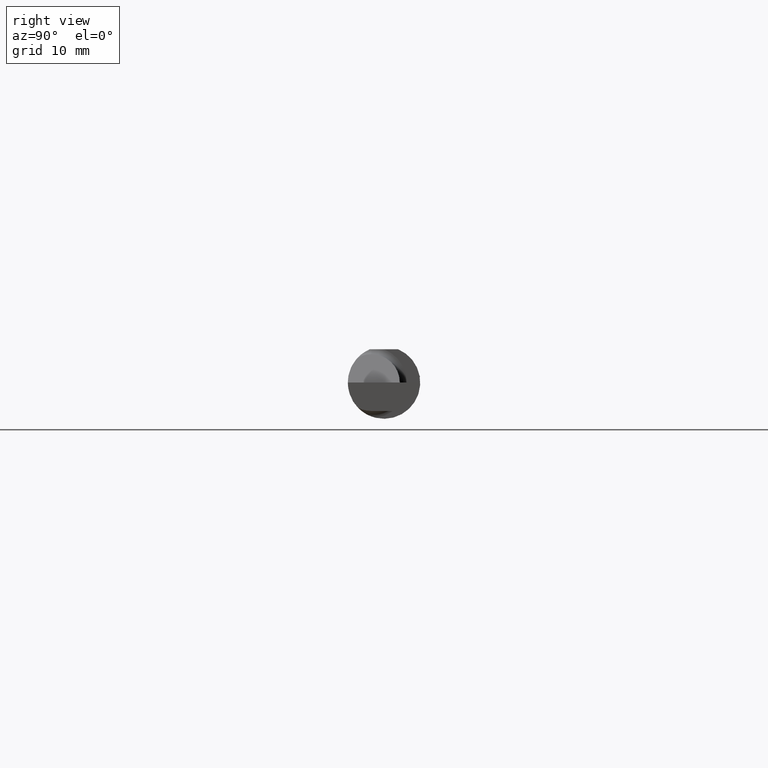
[diagram: clean part render]
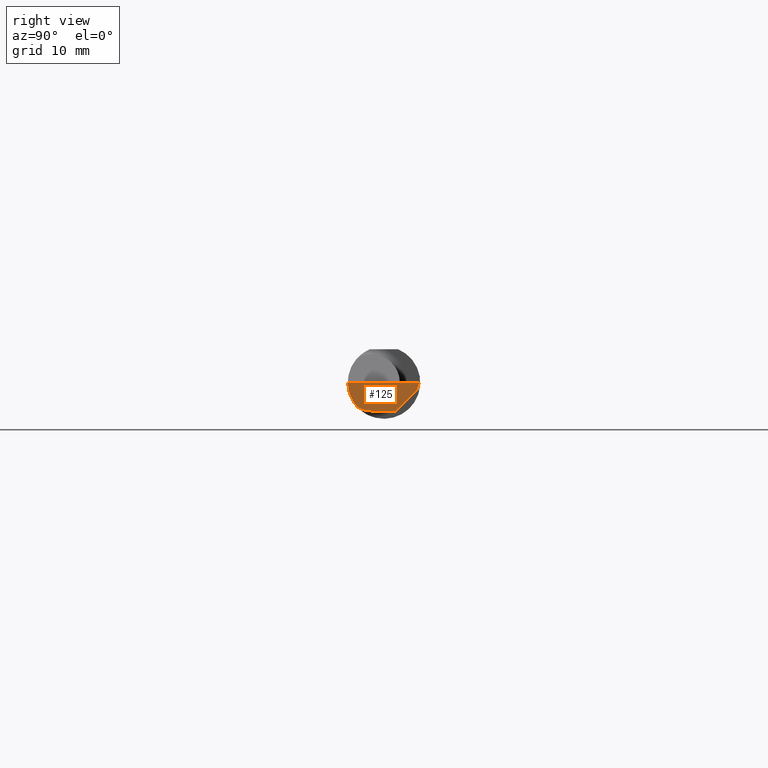
[diagram: same view with one face highlighted and labeled with its STEP entity id]
A machine part, right view. The second image highlights one B-rep face of the part: STEP entity #125.
In plain terms, the highlighted planar face has unit normal (-0.9995, 0.0174, 0.0262).
Its self-contained STEP definition (entity closure, byte-faithful):
#2 = EDGE_CURVE ( 'NONE', #163, #261, #554, .T. ) ;
#18 = VECTOR ( 'NONE', #441, 39.37007874015748854 ) ;
#52 = DIRECTION ( 'NONE',  ( -0.03042981077198583101, -0.3254173858243484818, -0.9450807116958995779 ) ) ;
#104 = VERTEX_POINT ( 'NONE', #473 ) ;
#106 = CARTESIAN_POINT ( 'NONE',  ( 2.494033449660867152, -0.09015216647662482874, -0.08637192471845768493 ) ) ;
#118 = LINE ( 'NONE', #552, #154 ) ;
#125 = ADVANCED_FACE ( 'NONE', ( #340 ), #695, .F. ) ;
#154 = VECTOR ( 'NONE', #302, 39.37007874015748854 ) ;
#163 = VERTEX_POINT ( 'NONE', #783 ) ;
#189 = CARTESIAN_POINT ( 'NONE',  ( 2.494253479596434175, -0.06008937020638530080, -0.09800000000000001765 ) ) ;
#194 = CARTESIAN_POINT ( 'NONE',  ( 2.494536841675280670, -0.04385000000000003478, -0.09799999999999998990 ) ) ;
#229 = LINE ( 'NONE', #588, #782 ) ;
#243 = CARTESIAN_POINT ( 'NONE',  ( 2.496652745773396020, 0.07741163850316090667, -0.09800000000000001765 ) ) ;
#250 = CARTESIAN_POINT ( 'NONE',  ( 2.495688583004118666, -0.1248499869621840785, -5.705736120969982501E-05 ) ) ;
#259 = VECTOR ( 'NONE', #540, 39.37007874015748854 ) ;
#261 = VERTEX_POINT ( 'NONE', #599 ) ;
#267 = VERTEX_POINT ( 'NONE', #614 ) ;
#272 = EDGE_CURVE ( 'NONE', #532, #536, #648, .T. ) ;
#278 = DIRECTION ( 'NONE',  ( -0.9995051766793262571, 0.01744044634007211117, 0.02617694830739122208 ) ) ;
#280 = DIRECTION ( 'NONE',  ( 0.01744642479411464761, 0.9998477995484629233, -2.135106780035675284E-18 ) ) ;
#297 = ORIENTED_EDGE ( 'NONE', *, *, #674, .F. ) ;
#302 = DIRECTION ( 'NONE',  ( 0.02617296143184116158, -0.0004568507411563387400, 0.9996573249755575929 ) ) ;
#325 = ORIENTED_EDGE ( 'NONE', *, *, #684, .F. ) ;
#337 = CARTESIAN_POINT ( 'NONE',  ( 2.497382703856816377, 0.1221956850741156286, -0.09996573249755572044 ) ) ;
#340 = FACE_OUTER_BOUND ( 'NONE', #779, .T. ) ;
#358 = ORIENTED_EDGE ( 'NONE', *, *, #593, .T. ) ;
#359 = VECTOR ( 'NONE', #280, 39.37007874015748854 ) ;
#365 = EDGE_CURVE ( 'NONE', #104, #267, #688, .T. ) ;
#411 = AXIS2_PLACEMENT_3D ( 'NONE', #337, #278, #571 ) ;
#441 = DIRECTION ( 'NONE',  ( -0.03084274406794521375, -0.7067703747110382073, -0.7067703747110356538 ) ) ;
#472 = CARTESIAN_POINT ( 'NONE',  ( 2.495688583004118666, -0.1248499869621840785, -5.705736120969982501E-05 ) ) ;
#473 = CARTESIAN_POINT ( 'NONE',  ( 2.495690077103728921, -0.1248499999950965084, 1.733801157256528502E-17 ) ) ;
#486 = VERTEX_POINT ( 'NONE', #585 ) ;
#497 = CARTESIAN_POINT ( 'NONE',  ( 2.499132853025171297, 0.1117231085775382687, -0.02616302870350971019 ) ) ;
#508 = EDGE_CURVE ( 'NONE', #267, #163, #229, .T. ) ;
#532 = VERTEX_POINT ( 'NONE', #106 ) ;
#536 = VERTEX_POINT ( 'NONE', #472 ) ;
#540 = DIRECTION ( 'NONE',  ( -0.01744642479411464067, -0.9998477995484629233, 2.816882764651547739E-16 ) ) ;
#549 = CARTESIAN_POINT ( 'NONE',  ( 2.494033449660867152, -0.09015216647662482874, -0.08637192471845768493 ) ) ;
#552 = CARTESIAN_POINT ( 'NONE',  ( 2.493072779947982820, -0.1248043149033065402, -0.09996577117162359916 ) ) ;
#554 = LINE ( 'NONE', #497, #18 ) ;
#560 = CARTESIAN_POINT ( 'NONE',  ( 2.494380489674781209, -0.1999019447116721915, 6.881915332554903690E-19 ) ) ;
#571 = DIRECTION ( 'NONE',  ( 0.02618093032612054533, 0.000000000000000000, 0.9996572206948034500 ) ) ;
#585 = CARTESIAN_POINT ( 'NONE',  ( 2.494536841675280670, -0.04385000000000003478, -0.09799999999999998990 ) ) ;
#588 = CARTESIAN_POINT ( 'NONE',  ( 2.499907402661638578, 0.1211597610527450630, -0.002875862722116008779 ) ) ;
#593 = EDGE_CURVE ( 'NONE', #532, #486, #713, .T. ) ;
#599 = CARTESIAN_POINT ( 'NONE',  ( 2.495997960279815686, 0.03988613728104775658, -0.09799999999999996214 ) ) ;
#606 = CARTESIAN_POINT ( 'NONE',  ( 2.494256244271084721, -0.1126860773865890480, -0.06285177167860772629 ) ) ;
#609 = CARTESIAN_POINT ( 'NONE',  ( 2.494033449660867152, -0.09015216647662482874, -0.08637192471845768493 ) ) ;
#614 = CARTESIAN_POINT ( 'NONE',  ( 2.500000000000000444, 0.1221499999999999808, 1.947508823608312588E-17 ) ) ;
#631 = ORIENTED_EDGE ( 'NONE', *, *, #272, .F. ) ;
#644 = ORIENTED_EDGE ( 'NONE', *, *, #365, .F. ) ;
#648 =( BOUNDED_CURVE ( )  B_SPLINE_CURVE ( 3, ( #549, #606, #666, #250 ),
 .UNSPECIFIED., .F., .F. ) 
 B_SPLINE_CURVE_WITH_KNOTS ( ( 4, 4 ),
 ( 0.2190942387645155864, 0.9826237902196512941 ),
 .UNSPECIFIED. ) 
 CURVE ( )  GEOMETRIC_REPRESENTATION_ITEM ( )  RATIONAL_B_SPLINE_CURVE ( ( 1.000000000000000000, 0.9520057322288819623, 0.9520057322288819623, 1.000000000000000000 ) ) 
 REPRESENTATION_ITEM ( '' )  );
#666 = CARTESIAN_POINT ( 'NONE',  ( 2.494835769263151537, -0.1248351010429638308, -0.03262966116142157480 ) ) ;
#674 = EDGE_CURVE ( 'NONE', #536, #104, #118, .T. ) ;
#684 = EDGE_CURVE ( 'NONE', #261, #486, #785, .T. ) ;
#688 = LINE ( 'NONE', #560, #359 ) ;
#695 = PLANE ( 'NONE',  #411 ) ;
#711 = ORIENTED_EDGE ( 'NONE', *, *, #2, .F. ) ;
#713 =( BOUNDED_CURVE ( )  B_SPLINE_CURVE ( 3, ( #609, #721, #189, #194 ),
 .UNSPECIFIED., .F., .T. ) 
 B_SPLINE_CURVE_WITH_KNOTS ( ( 4, 4 ),
 ( 0.09562308769844128642, 0.5877155292609013149 ),
 .UNSPECIFIED. ) 
 CURVE ( )  GEOMETRIC_REPRESENTATION_ITEM ( )  RATIONAL_B_SPLINE_CURVE ( ( 1.000000000000000000, 0.9799220177372778284, 0.9799220177372778284, 1.000000000000000000 ) ) 
 REPRESENTATION_ITEM ( '' )  );
#721 = CARTESIAN_POINT ( 'NONE',  ( 2.494082244196984099, -0.07583965973232818791, -0.09404455760388209795 ) ) ;
#779 = EDGE_LOOP ( 'NONE', ( #358, #325, #711, #787, #644, #297, #631 ) ) ;
#782 = VECTOR ( 'NONE', #52, 39.37007874015748854 ) ;
#783 = CARTESIAN_POINT ( 'NONE',  ( 2.499227245409318954, 0.1138861372810479888, -0.02400000000000000050 ) ) ;
#785 = LINE ( 'NONE', #243, #259 ) ;
#787 = ORIENTED_EDGE ( 'NONE', *, *, #508, .F. ) ;